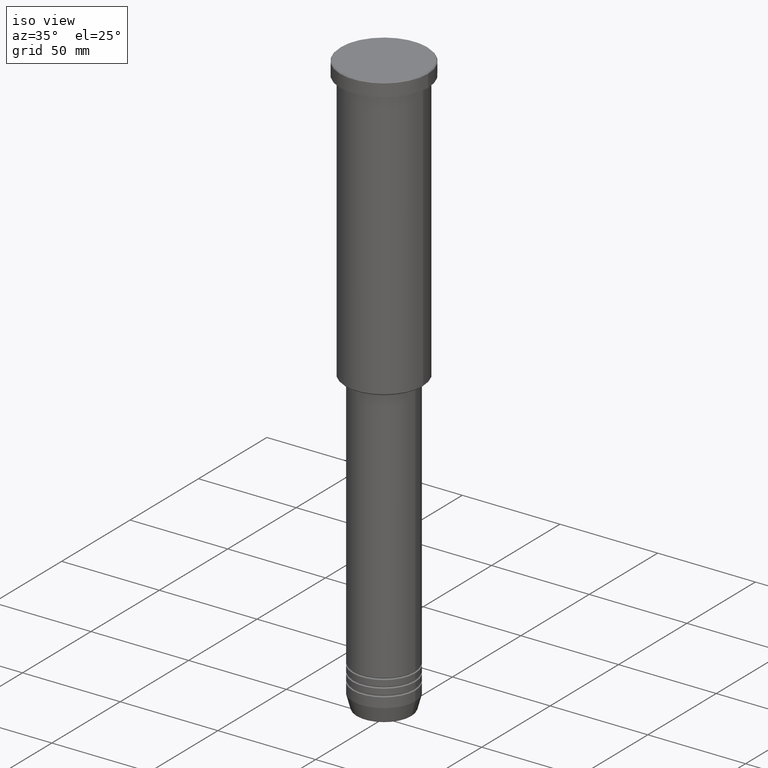
[diagram: clean part render]
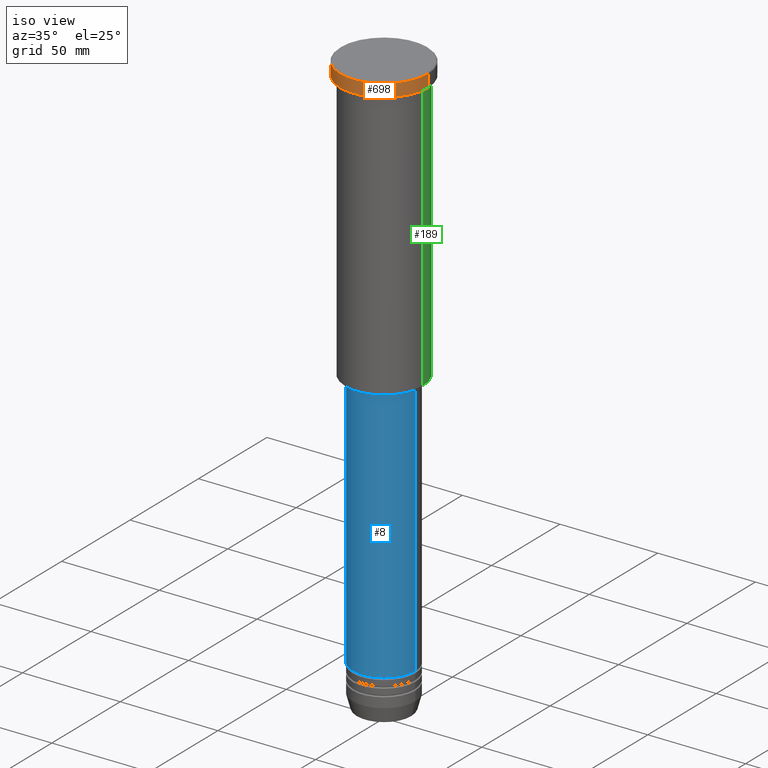
[diagram: same view with three faces highlighted in distinct colors, each labeled with its STEP entity id]
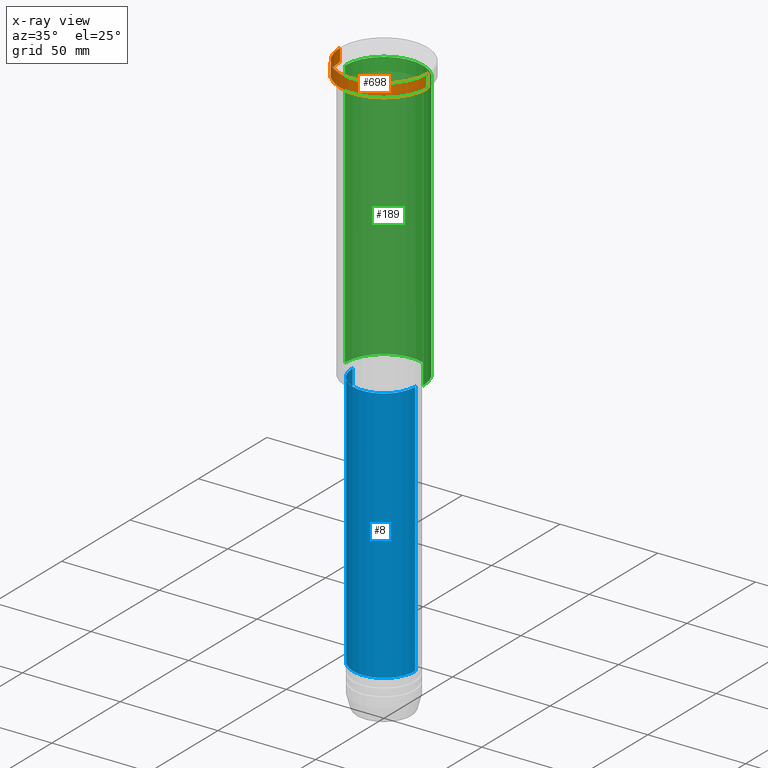
[diagram: x-ray of the same camera — body ghosted, the three highlighted faces saturated]
A machine part, iso view with three faces highlighted in distinct colors.
The next image is the same camera in x-ray (body ghosted, the three faces saturated) — at least one of them is partly hidden behind the body in this view.
Their STEP definitions:

[orange] entity #698 — the highlighted cylindrical surface (partial cylindrical patch) has radius 22.5 mm, axis along (-0, -0, 1).
#26 = CARTESIAN_POINT ( 'NONE',  ( -22.50000000000000000, 2.755455298081544778E-15, 0.000000000000000000 ) ) ;
#36 = EDGE_CURVE ( 'NONE', #928, #716, #305, .T. ) ;
#43 = ORIENTED_EDGE ( 'NONE', *, *, #459, .T. ) ;
#99 = VERTEX_POINT ( 'NONE', #120 ) ;
#120 = CARTESIAN_POINT ( 'NONE',  ( 22.50000000000000000, 0.000000000000000000, -6.999999999999995559 ) ) ;
#148 = CARTESIAN_POINT ( 'NONE',  ( -22.50000000000000000, 2.755455298081544778E-15, -6.999999999999995559 ) ) ;
#166 = DIRECTION ( 'NONE',  ( -0.000000000000000000, -0.000000000000000000, 1.000000000000000000 ) ) ;
#246 = VERTEX_POINT ( 'NONE', #435 ) ;
#285 = ORIENTED_EDGE ( 'NONE', *, *, #936, .T. ) ;
#305 = LINE ( 'NONE', #26, #708 ) ;
#314 = EDGE_CURVE ( 'NONE', #99, #246, #695, .T. ) ;
#327 = CARTESIAN_POINT ( 'NONE',  ( 0.000000000000000000, 0.000000000000000000, -6.999999999999995559 ) ) ;
#331 = CARTESIAN_POINT ( 'NONE',  ( 0.000000000000000000, 0.000000000000000000, 0.000000000000000000 ) ) ;
#371 = EDGE_LOOP ( 'NONE', ( #952, #285, #854, #43 ) ) ;
#393 = DIRECTION ( 'NONE',  ( 1.000000000000000000, 0.000000000000000000, 0.000000000000000000 ) ) ;
#420 = CARTESIAN_POINT ( 'NONE',  ( 22.50000000000000000, 0.000000000000000000, 0.000000000000000000 ) ) ;
#423 = DIRECTION ( 'NONE',  ( -0.000000000000000000, -0.000000000000000000, 1.000000000000000000 ) ) ;
#435 = CARTESIAN_POINT ( 'NONE',  ( 22.50000000000000000, 0.000000000000000000, -0.4999999999999935052 ) ) ;
#437 = CYLINDRICAL_SURFACE ( 'NONE', #1126, 22.50000000000000000 ) ;
#459 = EDGE_CURVE ( 'NONE', #246, #716, #525, .T. ) ;
#525 = CIRCLE ( 'NONE', #640, 22.50000000000000000 ) ;
#540 = VECTOR ( 'NONE', #817, 1000.000000000000000 ) ;
#640 = AXIS2_PLACEMENT_3D ( 'NONE', #958, #868, #393 ) ;
#695 = LINE ( 'NONE', #420, #540 ) ;
#698 = ADVANCED_FACE ( 'NONE', ( #981 ), #437, .T. ) ;
#708 = VECTOR ( 'NONE', #873, 1000.000000000000000 ) ;
#716 = VERTEX_POINT ( 'NONE', #803 ) ;
#803 = CARTESIAN_POINT ( 'NONE',  ( -22.50000000000000000, 2.755455298081544778E-15, -0.4999999999999935052 ) ) ;
#817 = DIRECTION ( 'NONE',  ( -0.000000000000000000, -0.000000000000000000, 1.000000000000000000 ) ) ;
#854 = ORIENTED_EDGE ( 'NONE', *, *, #314, .T. ) ;
#868 = DIRECTION ( 'NONE',  ( 0.000000000000000000, 0.000000000000000000, -1.000000000000000000 ) ) ;
#873 = DIRECTION ( 'NONE',  ( -0.000000000000000000, -0.000000000000000000, 1.000000000000000000 ) ) ;
#901 = DIRECTION ( 'NONE',  ( 1.000000000000000000, 0.000000000000000000, 0.000000000000000000 ) ) ;
#907 = DIRECTION ( 'NONE',  ( 1.000000000000000000, 0.000000000000000000, 0.000000000000000000 ) ) ;
#928 = VERTEX_POINT ( 'NONE', #148 ) ;
#934 = AXIS2_PLACEMENT_3D ( 'NONE', #327, #423, #901 ) ;
#936 = EDGE_CURVE ( 'NONE', #928, #99, #954, .T. ) ;
#952 = ORIENTED_EDGE ( 'NONE', *, *, #36, .F. ) ;
#954 = CIRCLE ( 'NONE', #934, 22.50000000000000000 ) ;
#958 = CARTESIAN_POINT ( 'NONE',  ( 0.000000000000000000, 0.000000000000000000, -0.4999999999999935052 ) ) ;
#981 = FACE_OUTER_BOUND ( 'NONE', #371, .T. ) ;
#1126 = AXIS2_PLACEMENT_3D ( 'NONE', #331, #166, #907 ) ;

[blue] entity #8 — the highlighted cylindrical surface (partial cylindrical patch) has radius 16 mm, axis along (-0, -0, 1).
#8 = ADVANCED_FACE ( 'NONE', ( #455 ), #74, .T. ) ;
#11 = AXIS2_PLACEMENT_3D ( 'NONE', #1088, #825, #746 ) ;
#54 = ORIENTED_EDGE ( 'NONE', *, *, #512, .T. ) ;
#74 = CYLINDRICAL_SURFACE ( 'NONE', #11, 16.00000000000000000 ) ;
#75 = DIRECTION ( 'NONE',  ( -0.000000000000000000, -0.000000000000000000, 1.000000000000000000 ) ) ;
#95 = CIRCLE ( 'NONE', #1046, 16.00000000000000000 ) ;
#132 = ORIENTED_EDGE ( 'NONE', *, *, #1053, .F. ) ;
#259 = ORIENTED_EDGE ( 'NONE', *, *, #811, .T. ) ;
#293 = CARTESIAN_POINT ( 'NONE',  ( -16.00000000000000000, 1.959434878635765131E-15, -147.0000000000000000 ) ) ;
#321 = VECTOR ( 'NONE', #843, 1000.000000000000000 ) ;
#352 = DIRECTION ( 'NONE',  ( 1.000000000000000000, 0.000000000000000000, 0.000000000000000000 ) ) ;
#355 = CIRCLE ( 'NONE', #429, 16.00000000000000000 ) ;
#402 = VERTEX_POINT ( 'NONE', #1102 ) ;
#429 = AXIS2_PLACEMENT_3D ( 'NONE', #1002, #75, #352 ) ;
#455 = FACE_OUTER_BOUND ( 'NONE', #470, .T. ) ;
#456 = ORIENTED_EDGE ( 'NONE', *, *, #733, .F. ) ;
#470 = EDGE_LOOP ( 'NONE', ( #456, #54, #259, #132 ) ) ;
#472 = VERTEX_POINT ( 'NONE', #293 ) ;
#473 = DIRECTION ( 'NONE',  ( -0.000000000000000000, -0.000000000000000000, 1.000000000000000000 ) ) ;
#478 = VERTEX_POINT ( 'NONE', #685 ) ;
#512 = EDGE_CURVE ( 'NONE', #478, #402, #355, .T. ) ;
#519 = CARTESIAN_POINT ( 'NONE',  ( 16.00000000000000000, 0.000000000000000000, 0.000000000000000000 ) ) ;
#682 = CARTESIAN_POINT ( 'NONE',  ( 16.00000000000000000, 0.000000000000000000, -147.0000000000000000 ) ) ;
#685 = CARTESIAN_POINT ( 'NONE',  ( -16.00000000000000000, 1.959434878635765131E-15, -278.4999999999999432 ) ) ;
#721 = DIRECTION ( 'NONE',  ( -0.000000000000000000, -0.000000000000000000, 1.000000000000000000 ) ) ;
#733 = EDGE_CURVE ( 'NONE', #478, #472, #764, .T. ) ;
#745 = DIRECTION ( 'NONE',  ( 1.000000000000000000, 0.000000000000000000, 0.000000000000000000 ) ) ;
#746 = DIRECTION ( 'NONE',  ( 1.000000000000000000, 0.000000000000000000, 0.000000000000000000 ) ) ;
#764 = LINE ( 'NONE', #852, #321 ) ;
#774 = VERTEX_POINT ( 'NONE', #682 ) ;
#801 = CARTESIAN_POINT ( 'NONE',  ( 0.000000000000000000, 0.000000000000000000, -147.0000000000000000 ) ) ;
#811 = EDGE_CURVE ( 'NONE', #402, #774, #1137, .T. ) ;
#825 = DIRECTION ( 'NONE',  ( -0.000000000000000000, -0.000000000000000000, 1.000000000000000000 ) ) ;
#843 = DIRECTION ( 'NONE',  ( -0.000000000000000000, -0.000000000000000000, 1.000000000000000000 ) ) ;
#852 = CARTESIAN_POINT ( 'NONE',  ( -16.00000000000000000, 1.959434878635765131E-15, 0.000000000000000000 ) ) ;
#916 = VECTOR ( 'NONE', #721, 1000.000000000000000 ) ;
#1002 = CARTESIAN_POINT ( 'NONE',  ( 0.000000000000000000, 0.000000000000000000, -278.4999999999999432 ) ) ;
#1046 = AXIS2_PLACEMENT_3D ( 'NONE', #801, #473, #745 ) ;
#1053 = EDGE_CURVE ( 'NONE', #472, #774, #95, .T. ) ;
#1088 = CARTESIAN_POINT ( 'NONE',  ( 0.000000000000000000, 0.000000000000000000, 0.000000000000000000 ) ) ;
#1102 = CARTESIAN_POINT ( 'NONE',  ( 16.00000000000000000, 0.000000000000000000, -278.4999999999999432 ) ) ;
#1137 = LINE ( 'NONE', #519, #916 ) ;

[green] entity #189 — the highlighted cylindrical surface (partial cylindrical patch) has radius 20 mm, axis along (-0, -0, 1).
#1 = CARTESIAN_POINT ( 'NONE',  ( -20.00000000000000355, 2.449293598294706907E-15, -145.5000000000000853 ) ) ;
#29 = VERTEX_POINT ( 'NONE', #1161 ) ;
#33 = VERTEX_POINT ( 'NONE', #1094 ) ;
#138 = ORIENTED_EDGE ( 'NONE', *, *, #949, .F. ) ;
#140 = DIRECTION ( 'NONE',  ( -1.000000000000000000, 0.000000000000000000, 0.000000000000000000 ) ) ;
#189 = ADVANCED_FACE ( 'NONE', ( #570 ), #950, .T. ) ;
#218 = VECTOR ( 'NONE', #1063, 1000.000000000000000 ) ;
#322 = EDGE_CURVE ( 'NONE', #33, #752, #1079, .T. ) ;
#353 = AXIS2_PLACEMENT_3D ( 'NONE', #632, #1160, #140 ) ;
#380 = VECTOR ( 'NONE', #1041, 1000.000000000000000 ) ;
#387 = DIRECTION ( 'NONE',  ( -0.000000000000000000, -0.000000000000000000, 1.000000000000000000 ) ) ;
#403 = AXIS2_PLACEMENT_3D ( 'NONE', #490, #387, #866 ) ;
#404 = CARTESIAN_POINT ( 'NONE',  ( 20.00000000000000355, 0.000000000000000000, 0.000000000000000000 ) ) ;
#490 = CARTESIAN_POINT ( 'NONE',  ( 0.000000000000000000, 0.000000000000000000, -7.999999999999994671 ) ) ;
#517 = ORIENTED_EDGE ( 'NONE', *, *, #942, .T. ) ;
#520 = VERTEX_POINT ( 'NONE', #650 ) ;
#526 = ORIENTED_EDGE ( 'NONE', *, *, #322, .T. ) ;
#533 = LINE ( 'NONE', #707, #218 ) ;
#570 = FACE_OUTER_BOUND ( 'NONE', #1054, .T. ) ;
#632 = CARTESIAN_POINT ( 'NONE',  ( 0.000000000000000000, 0.000000000000000000, -145.5000000000000853 ) ) ;
#650 = CARTESIAN_POINT ( 'NONE',  ( -20.00000000000000000, 2.449293598294706513E-15, -7.999999999999994671 ) ) ;
#707 = CARTESIAN_POINT ( 'NONE',  ( -20.00000000000000355, 2.449293598294706907E-15, 0.000000000000000000 ) ) ;
#752 = VERTEX_POINT ( 'NONE', #1 ) ;
#866 = DIRECTION ( 'NONE',  ( 1.000000000000000000, 0.000000000000000000, 0.000000000000000000 ) ) ;
#899 = EDGE_CURVE ( 'NONE', #33, #29, #1118, .T. ) ;
#914 = AXIS2_PLACEMENT_3D ( 'NONE', #1090, #1148, #995 ) ;
#942 = EDGE_CURVE ( 'NONE', #752, #520, #533, .T. ) ;
#949 = EDGE_CURVE ( 'NONE', #29, #520, #1182, .T. ) ;
#950 = CYLINDRICAL_SURFACE ( 'NONE', #914, 20.00000000000000355 ) ;
#962 = ORIENTED_EDGE ( 'NONE', *, *, #899, .F. ) ;
#995 = DIRECTION ( 'NONE',  ( 1.000000000000000000, 0.000000000000000000, 0.000000000000000000 ) ) ;
#1041 = DIRECTION ( 'NONE',  ( -0.000000000000000000, -0.000000000000000000, 1.000000000000000000 ) ) ;
#1054 = EDGE_LOOP ( 'NONE', ( #526, #517, #138, #962 ) ) ;
#1063 = DIRECTION ( 'NONE',  ( -0.000000000000000000, -0.000000000000000000, 1.000000000000000000 ) ) ;
#1079 = CIRCLE ( 'NONE', #353, 20.00000000000000355 ) ;
#1090 = CARTESIAN_POINT ( 'NONE',  ( 0.000000000000000000, 0.000000000000000000, 0.000000000000000000 ) ) ;
#1094 = CARTESIAN_POINT ( 'NONE',  ( 20.00000000000000355, 0.000000000000000000, -145.5000000000000853 ) ) ;
#1118 = LINE ( 'NONE', #404, #380 ) ;
#1148 = DIRECTION ( 'NONE',  ( -0.000000000000000000, -0.000000000000000000, 1.000000000000000000 ) ) ;
#1160 = DIRECTION ( 'NONE',  ( -0.000000000000000000, -0.000000000000000000, 1.000000000000000000 ) ) ;
#1161 = CARTESIAN_POINT ( 'NONE',  ( 20.00000000000000000, 0.000000000000000000, -7.999999999999994671 ) ) ;
#1182 = CIRCLE ( 'NONE', #403, 20.00000000000000000 ) ;